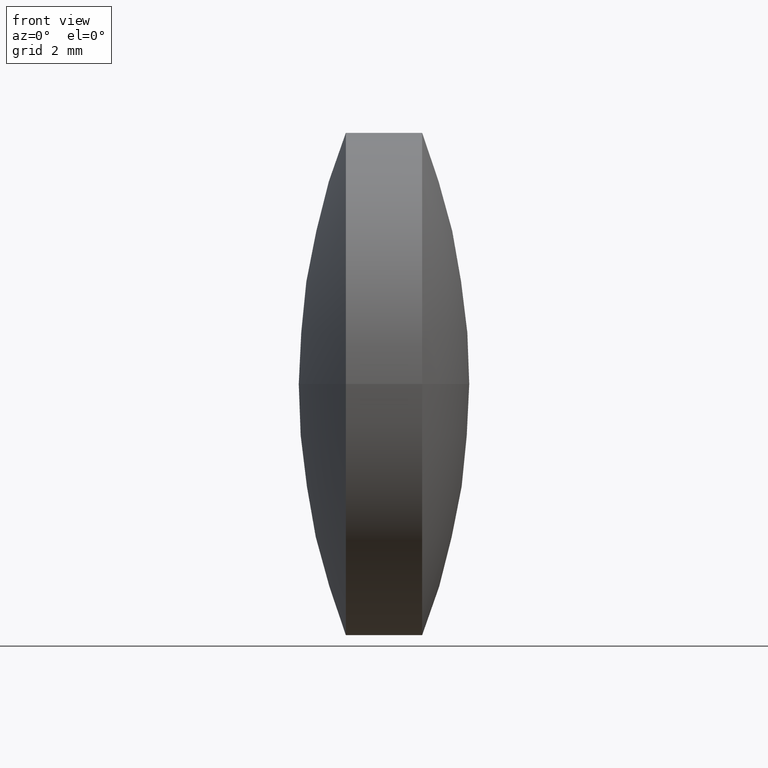
[diagram: clean part render]
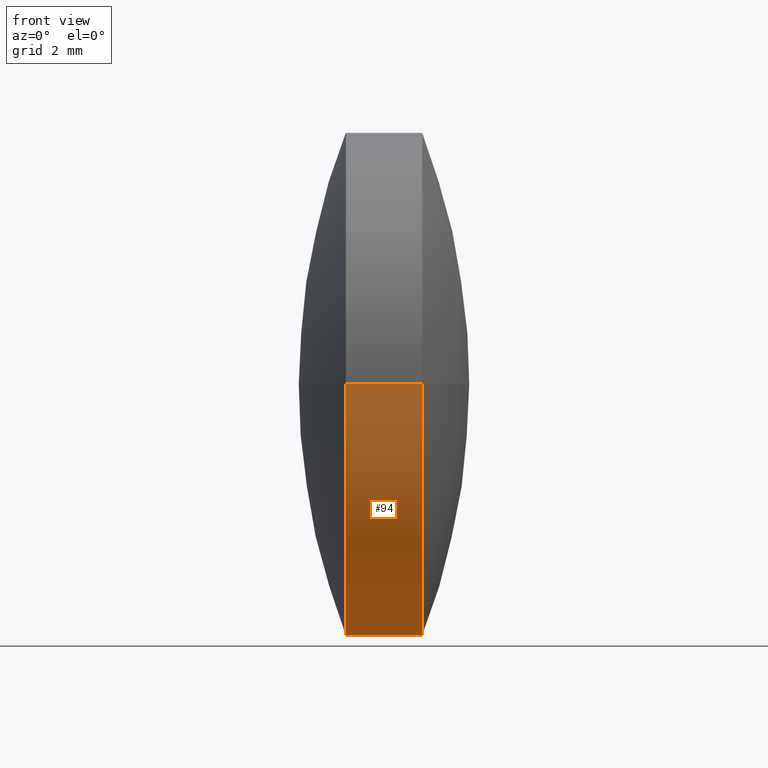
[diagram: same view with one face highlighted and labeled with its STEP entity id]
A machine part, front view. The second image highlights one B-rep face of the part: STEP entity #94.
In plain terms, the highlighted cylindrical surface (partial cylindrical patch) has radius 6.5 mm, axis along (-1, -0, -0).
Its self-contained STEP definition (entity closure, byte-faithful):
#10 = FACE_OUTER_BOUND ( 'NONE', #281, .T. ) ;
#12 = ORIENTED_EDGE ( 'NONE', *, *, #57, .F. ) ;
#30 = ORIENTED_EDGE ( 'NONE', *, *, #162, .T. ) ;
#37 = CYLINDRICAL_SURFACE ( 'NONE', #163, 6.500018571481612100 ) ;
#44 = CARTESIAN_POINT ( 'NONE',  ( 45.23538308598923400, 31.38235223478481800, 7.960226937963231700E-016 ) ) ;
#46 = VERTEX_POINT ( 'NONE', #224 ) ;
#57 = EDGE_CURVE ( 'NONE', #230, #46, #211, .T. ) ;
#64 = DIRECTION ( 'NONE',  ( 4.270076355997599800E-015, -1.000000000000000000, 0.0000000000000000000 ) ) ;
#68 = DIRECTION ( 'NONE',  ( 4.270076355997597500E-015, -1.000000000000000000, 0.0000000000000000000 ) ) ;
#75 = CIRCLE ( 'NONE', #173, 6.500018571481615700 ) ;
#86 = DIRECTION ( 'NONE',  ( -1.000000000000000000, -4.344046041914963800E-015, -0.0000000000000000000 ) ) ;
#94 = ADVANCED_FACE ( 'NONE', ( #10 ), #37, .T. ) ;
#105 = DIRECTION ( 'NONE',  ( -1.000000000000000000, -4.344046041914963800E-015, -0.0000000000000000000 ) ) ;
#112 = VERTEX_POINT ( 'NONE', #294 ) ;
#117 = VECTOR ( 'NONE', #204, 1000.000000000000000 ) ;
#132 = VECTOR ( 'NONE', #200, 1000.000000000000000 ) ;
#149 = LINE ( 'NONE', #272, #132 ) ;
#154 = DIRECTION ( 'NONE',  ( 4.270076355997595100E-015, -1.000000000000000000, 0.0000000000000000000 ) ) ;
#157 = ORIENTED_EDGE ( 'NONE', *, *, #212, .T. ) ;
#158 = AXIS2_PLACEMENT_3D ( 'NONE', #301, #198, #64 ) ;
#162 = EDGE_CURVE ( 'NONE', #230, #112, #167, .T. ) ;
#163 = AXIS2_PLACEMENT_3D ( 'NONE', #181, #105, #68 ) ;
#167 = CIRCLE ( 'NONE', #158, 6.500018571481608600 ) ;
#173 = AXIS2_PLACEMENT_3D ( 'NONE', #175, #86, #154 ) ;
#175 = CARTESIAN_POINT ( 'NONE',  ( 43.26538308598926400, 24.88233366330320400, 0.0000000000000000000 ) ) ;
#179 = EDGE_CURVE ( 'NONE', #46, #249, #75, .T. ) ;
#181 = CARTESIAN_POINT ( 'NONE',  ( 40.95996140012911700, 24.88233366330319300, 0.0000000000000000000 ) ) ;
#198 = DIRECTION ( 'NONE',  ( -1.000000000000000000, -4.344046041914963800E-015, -0.0000000000000000000 ) ) ;
#200 = DIRECTION ( 'NONE',  ( -1.000000000000000000, -4.344046041914963800E-015, -0.0000000000000000000 ) ) ;
#204 = DIRECTION ( 'NONE',  ( -1.000000000000000000, -4.344046041914963800E-015, -0.0000000000000000000 ) ) ;
#211 = LINE ( 'NONE', #252, #117 ) ;
#212 = EDGE_CURVE ( 'NONE', #112, #249, #149, .T. ) ;
#224 = CARTESIAN_POINT ( 'NONE',  ( 43.26538308598923500, 31.38235223478483200, 0.0000000000000000000 ) ) ;
#230 = VERTEX_POINT ( 'NONE', #44 ) ;
#231 = ORIENTED_EDGE ( 'NONE', *, *, #179, .F. ) ;
#244 = CARTESIAN_POINT ( 'NONE',  ( 43.26538308598929200, 18.38231509182151800, -7.960226937963326300E-016 ) ) ;
#249 = VERTEX_POINT ( 'NONE', #244 ) ;
#252 = CARTESIAN_POINT ( 'NONE',  ( 40.95996140012909600, 31.38235223478480400, 7.960226937963307600E-016 ) ) ;
#272 = CARTESIAN_POINT ( 'NONE',  ( 40.95996140012914600, 18.38231509182158200, 0.0000000000000000000 ) ) ;
#281 = EDGE_LOOP ( 'NONE', ( #12, #30, #157, #231 ) ) ;
#294 = CARTESIAN_POINT ( 'NONE',  ( 45.23538308598929100, 18.38231509182166000, 0.0000000000000000000 ) ) ;
#301 = CARTESIAN_POINT ( 'NONE',  ( 45.23538308598926200, 24.88233366330321100, 0.0000000000000000000 ) ) ;